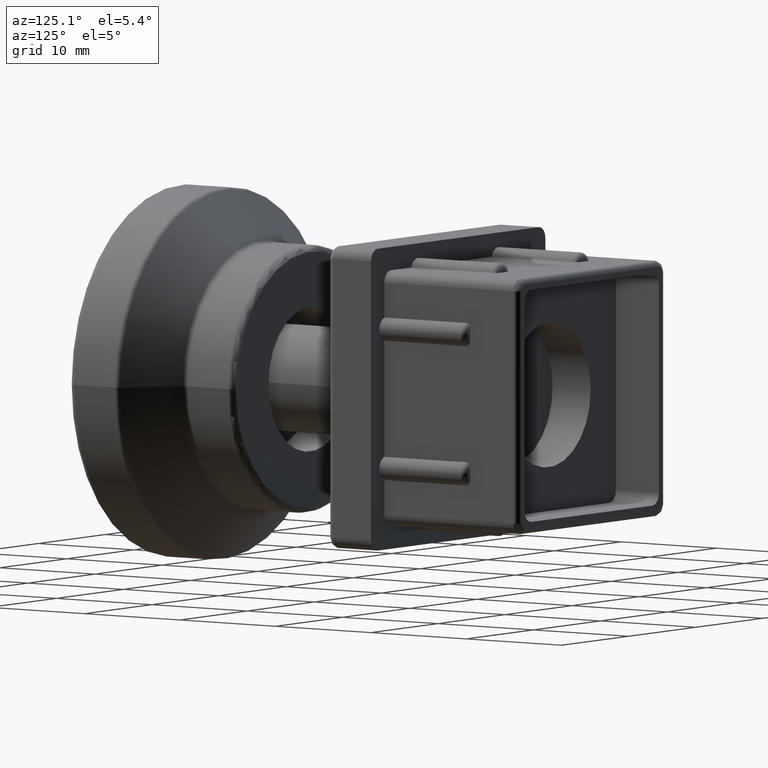
[diagram: clean part render]
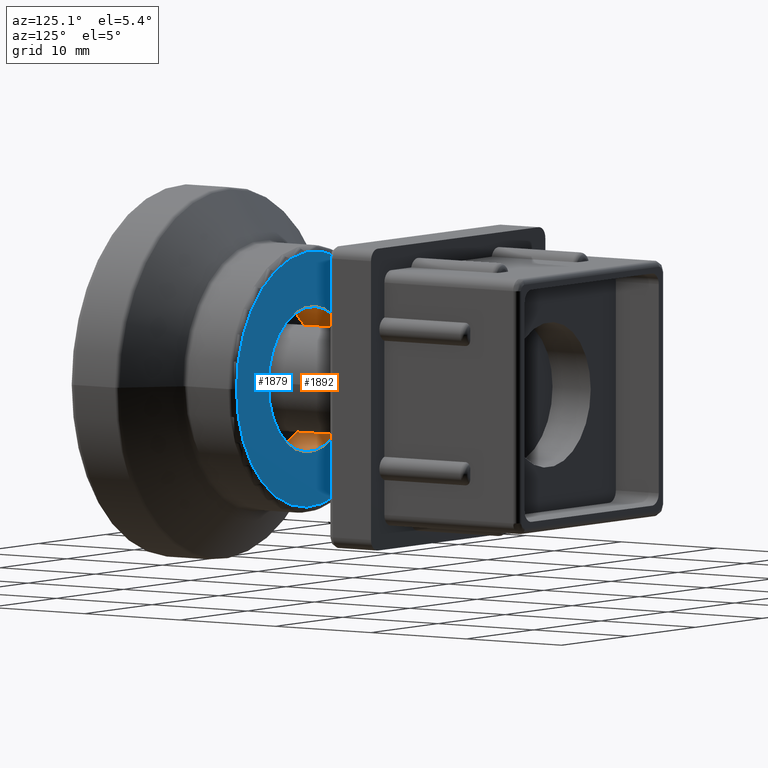
[diagram: same view with the hole feature highlighted: cylindrical wall and planar end face, labeled with their STEP entity ids]
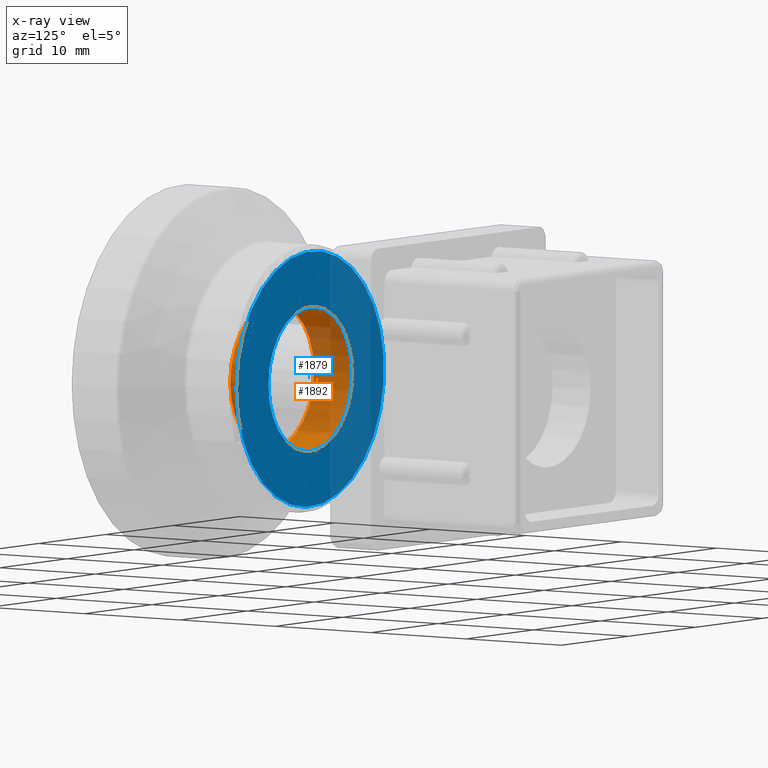
[diagram: x-ray of the same camera — body ghosted, the hole faces saturated]
A machine part, auxiliary view. The highlighted faces form one hole feature of diameter 12.5 mm: the cylindrical wall (entity #1892, orange) and its adjacent planar end face (entity #1879, blue) — they share a circular edge in the B-rep.
The next image is the same camera in x-ray (body ghosted, the hole faces saturated) — the bore reads through the body.
Wall:
#50=FACE_BOUND('',#415,.T.);
#85=CIRCLE('',#2025,6.25);
#96=CIRCLE('',#2049,6.25);
#281=FACE_OUTER_BOUND('',#414,.T.);
#414=EDGE_LOOP('',(#1428));
#415=EDGE_LOOP('',(#1429));
#852=VERTEX_POINT('',#3108);
#854=VERTEX_POINT('',#3134);
#1054=EDGE_CURVE('',#852,#852,#85,.T.);
#1065=EDGE_CURVE('',#854,#854,#96,.T.);
#1428=ORIENTED_EDGE('',*,*,#1065,.T.);
#1429=ORIENTED_EDGE('',*,*,#1054,.F.);
#1817=CYLINDRICAL_SURFACE('',#2048,6.25);
#1892=ADVANCED_FACE('',(#281,#50),#1817,.F.);
#2025=AXIS2_PLACEMENT_3D('',#3109,#2350,#2351);
#2048=AXIS2_PLACEMENT_3D('',#3133,#2396,#2397);
#2049=AXIS2_PLACEMENT_3D('',#3135,#2398,#2399);
#2350=DIRECTION('center_axis',(6.34413156928661E-17,-1.,0.));
#2351=DIRECTION('ref_axis',(-1.,0.,0.));
#2396=DIRECTION('center_axis',(0.,-1.,0.));
#2397=DIRECTION('ref_axis',(-1.,0.,0.));
#2398=DIRECTION('center_axis',(6.34413156928661E-17,-1.,0.));
#2399=DIRECTION('ref_axis',(-1.,-6.34413156928661E-17,0.));
#3108=CARTESIAN_POINT('',(6.25,14.,-7.65404249467096E-16));
#3109=CARTESIAN_POINT('Origin',(-8.88178419700125E-16,14.,0.));
#3133=CARTESIAN_POINT('Origin',(-8.88178419700125E-16,14.,0.));
#3134=CARTESIAN_POINT('',(6.25,10.,-7.65404249467096E-16));
#3135=CARTESIAN_POINT('Origin',(-8.88178419700125E-16,10.,0.));
End face:
#47=FACE_BOUND('',#399,.T.);
#84=CIRCLE('',#2023,11.);
#85=CIRCLE('',#2025,6.25);
#201=PLANE('',#2024);
#268=FACE_OUTER_BOUND('',#398,.T.);
#398=EDGE_LOOP('',(#1360));
#399=EDGE_LOOP('',(#1361));
#851=VERTEX_POINT('',#3105);
#852=VERTEX_POINT('',#3108);
#1053=EDGE_CURVE('',#851,#851,#84,.T.);
#1054=EDGE_CURVE('',#852,#852,#85,.T.);
#1360=ORIENTED_EDGE('',*,*,#1053,.F.);
#1361=ORIENTED_EDGE('',*,*,#1054,.T.);
#1879=ADVANCED_FACE('',(#268,#47),#201,.T.);
#2023=AXIS2_PLACEMENT_3D('',#3106,#2346,#2347);
#2024=AXIS2_PLACEMENT_3D('',#3107,#2348,#2349);
#2025=AXIS2_PLACEMENT_3D('',#3109,#2350,#2351);
#2346=DIRECTION('center_axis',(6.34413156928661E-17,-1.,0.));
#2347=DIRECTION('ref_axis',(-1.,-6.34413156928661E-17,1.22464679914735E-16));
#2348=DIRECTION('center_axis',(-6.34413156928661E-17,1.,0.));
#2349=DIRECTION('ref_axis',(0.,0.,1.));
#2350=DIRECTION('center_axis',(6.34413156928661E-17,-1.,0.));
#2351=DIRECTION('ref_axis',(-1.,0.,0.));
#3105=CARTESIAN_POINT('',(11.,14.,0.));
#3106=CARTESIAN_POINT('Origin',(-8.88178419700125E-16,14.,0.));
#3107=CARTESIAN_POINT('Origin',(11.5,14.,0.));
#3108=CARTESIAN_POINT('',(6.25,14.,-7.65404249467096E-16));
#3109=CARTESIAN_POINT('Origin',(-8.88178419700125E-16,14.,0.));